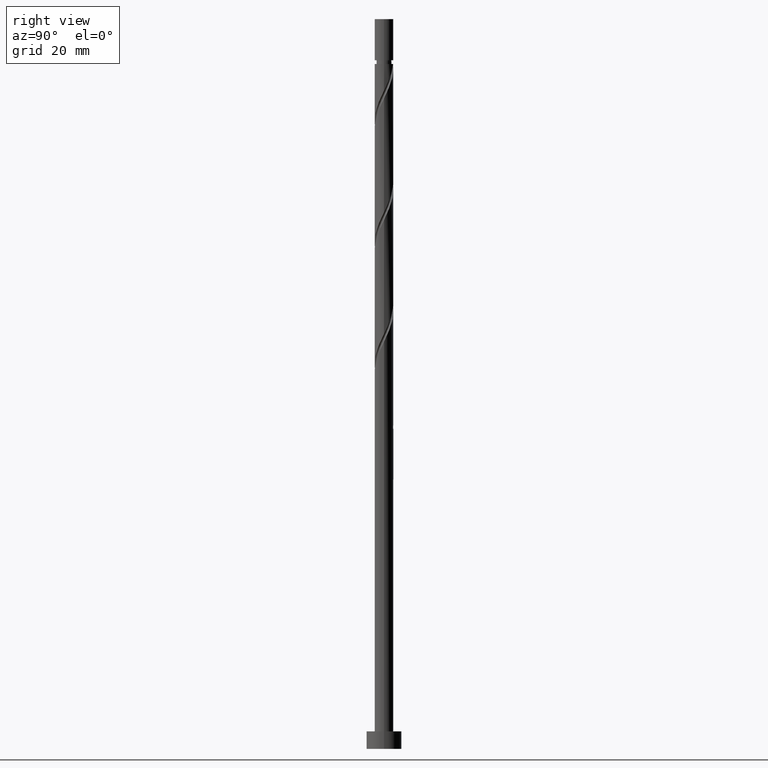
[diagram: clean part render]
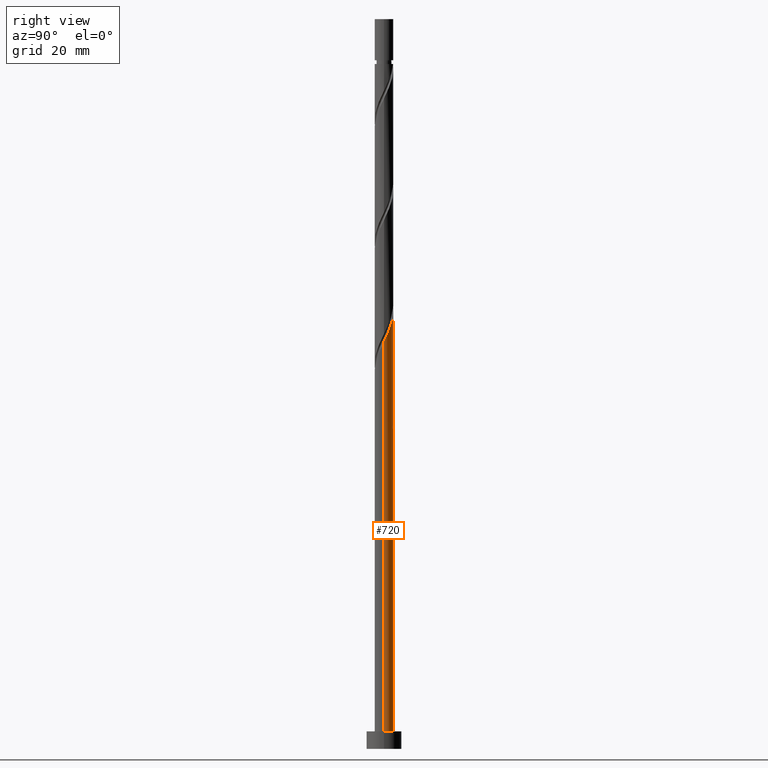
[diagram: same view with one face highlighted and labeled with its STEP entity id]
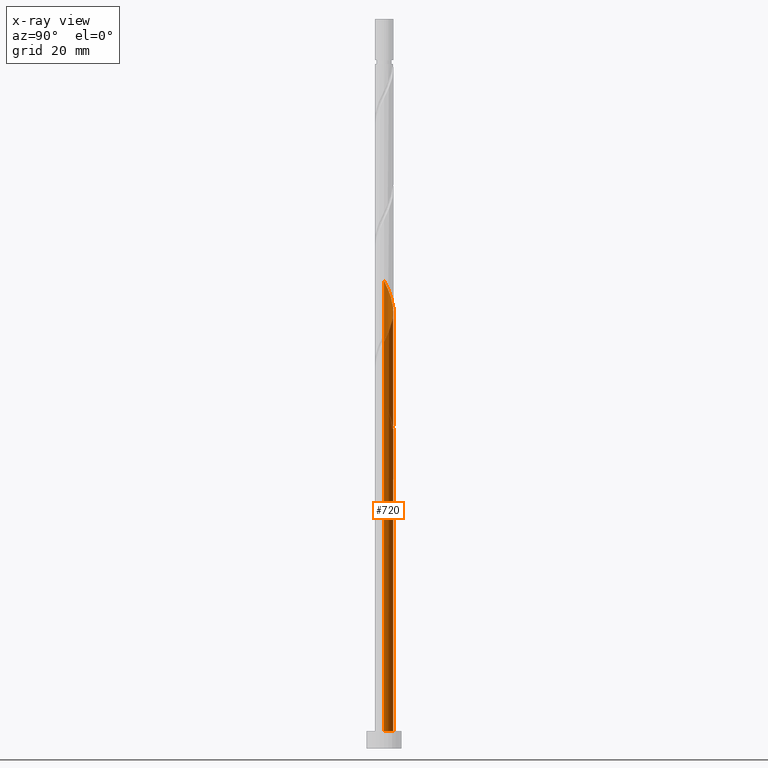
[diagram: x-ray of the same camera — body ghosted, the highlighted face saturated]
A machine part, right view. The second image highlights one B-rep face of the part: STEP entity #720.
The next image is the same camera in x-ray: the body ghosted, the highlighted face saturated — about 0% of this face is hidden behind the body in this view.
In plain terms, the highlighted cylindrical surface (edge-blend (fillet) strip) has radius 1.6 mm, axis along (-0, -0, -1).
Its self-contained STEP definition (entity closure, byte-faithful):
#3 = VERTEX_POINT ( 'NONE', #1516 ) ;
#34 = EDGE_CURVE ( 'NONE', #677, #938, #893, .T. ) ;
#38 = DIRECTION ( 'NONE',  ( -0.000000000000000000, -0.000000000000000000, -1.000000000000000000 ) ) ;
#57 = CARTESIAN_POINT ( 'NONE',  ( -1.455687108539137187, 0.6640595169357730310, 57.93328590375755738 ) ) ;
#74 = CARTESIAN_POINT ( 'NONE',  ( -1.007959654899766910, 1.268162666732014721, 77.20411923709089308 ) ) ;
#79 = VERTEX_POINT ( 'NONE', #153 ) ;
#81 = CARTESIAN_POINT ( 'NONE',  ( 1.600000000000002087, 1.641744754761022341E-15, 69.76848346228729270 ) ) ;
#89 = CARTESIAN_POINT ( 'NONE',  ( 0.1817260757584571729, 1.589646386272568934, 74.59995257042425010 ) ) ;
#91 = CARTESIAN_POINT ( 'NONE',  ( 0.000000000000000000, 0.000000000000000000, 3.000000000000000000 ) ) ;
#113 =( BOUNDED_CURVE ( )  B_SPLINE_CURVE ( 2, ( #289, #780, #1269, #167, #1141, #182, #57, #1515, #791, #662, #1028 ),
 .UNSPECIFIED., .F., .T. ) 
 B_SPLINE_CURVE_WITH_KNOTS ( ( 3, 2, 2, 2, 2, 3 ),
 ( 0.000000000000000000, 0.01249999999999995559, 0.02500000000000002220, 0.03749999999999997780, 0.05000000000000004441, 0.05453220231385498551 ),
 .UNSPECIFIED. ) 
 CURVE ( )  GEOMETRIC_REPRESENTATION_ITEM ( )  RATIONAL_B_SPLINE_CURVE ( ( 0.9090909090909201629, 0.8978984914501362269, 0.9090909090909201629, 0.8978984914501362269, 0.9090909090909201629, 0.8978984914501362269, 0.9090909090909201629, 0.8978984914501362269, 0.9090909090909201629, 0.9050328050005846947, 0.9039174447099425080 ) ) 
 REPRESENTATION_ITEM ( '' )  );
#123 = ORIENTED_EDGE ( 'NONE', *, *, #1422, .F. ) ;
#129 = CARTESIAN_POINT ( 'NONE',  ( -1.081390185820699124, 1.179235034253423464, 57.93328590375756448 ) ) ;
#153 = CARTESIAN_POINT ( 'NONE',  ( -0.3183959798741186620, 1.568000000000002281, 54.80828590375756448 ) ) ;
#162 = CARTESIAN_POINT ( 'NONE',  ( -1.568000000000000060, 0.3183959798741188285, 60.01661923709088597 ) ) ;
#167 = CARTESIAN_POINT ( 'NONE',  ( -1.007959654899766910, 1.268162666732014721, 56.37078590375755738 ) ) ;
#182 = CARTESIAN_POINT ( 'NONE',  ( -1.350510413607083127, 0.8946177049093868572, 57.41245257042422878 ) ) ;
#196 = EDGE_CURVE ( 'NONE', #938, #3, #1466, .T. ) ;
#207 = CARTESIAN_POINT ( 'NONE',  ( 1.081390185820700900, 1.179235034253424796, 72.51661923709087887 ) ) ;
#214 = CARTESIAN_POINT ( 'NONE',  ( 1.568000000000002281, 0.3183959798741187175, 70.43328590375756448 ) ) ;
#229 = CARTESIAN_POINT ( 'NONE',  ( -0.6640595169357719207, 1.455687108539135188, 56.89161923709089308 ) ) ;
#244 = CARTESIAN_POINT ( 'NONE',  ( 1.600000000000002087, 1.641744754761022341E-15, 69.76848346228729270 ) ) ;
#275 = EDGE_CURVE ( 'NONE', #1084, #330, #888, .T. ) ;
#289 = CARTESIAN_POINT ( 'NONE',  ( -0.3183959798741186620, 1.568000000000002281, 54.80828590375756448 ) ) ;
#305 = CARTESIAN_POINT ( 'NONE',  ( 1.600000000000000089, 1.959434878635764737E-16, 3.000000000000000000 ) ) ;
#306 = ORIENTED_EDGE ( 'NONE', *, *, #1047, .T. ) ;
#330 = VERTEX_POINT ( 'NONE', #1179 ) ;
#339 = CARTESIAN_POINT ( 'NONE',  ( -1.179235034253425241, 1.081390185820700678, 77.72495257042420747 ) ) ;
#351 = LINE ( 'NONE', #962, #360 ) ;
#360 = VECTOR ( 'NONE', #705, 1000.000000000000000 ) ;
#394 = DIRECTION ( 'NONE',  ( -4.814824860968087531E-30, -3.252606517456512671E-14, -1.000000000000000000 ) ) ;
#424 = AXIS2_PLACEMENT_3D ( 'NONE', #665, #394, #514 ) ;
#438 = CARTESIAN_POINT ( 'NONE',  ( -0.3183959798741186065, 1.568000000000002281, 75.64161923709089308 ) ) ;
#448 = DIRECTION ( 'NONE',  ( 0.000000000000000000, 0.000000000000000000, 1.000000000000000000 ) ) ;
#451 = EDGE_CURVE ( 'NONE', #79, #663, #113, .T. ) ;
#453 = CARTESIAN_POINT ( 'NONE',  ( -0.1817260757584562014, 1.589646386272566492, 55.84995257042422878 ) ) ;
#483 = DIRECTION ( 'NONE',  ( -0.000000000000000000, -0.000000000000000000, -1.000000000000000000 ) ) ;
#487 = CARTESIAN_POINT ( 'NONE',  ( 0.3183959798741191616, 1.568000000000000060, 54.80828590375756448 ) ) ;
#490 = DIRECTION ( 'NONE',  ( -0.000000000000000000, -0.000000000000000000, -1.000000000000000000 ) ) ;
#512 = CARTESIAN_POINT ( 'NONE',  ( -1.599999999999999201, 0.1608060504414752512, 60.34711710315331601 ) ) ;
#514 = DIRECTION ( 'NONE',  ( 0.000000000000000000, 1.000000000000000000, -3.035766082959412415E-14 ) ) ;
#549 = CARTESIAN_POINT ( 'NONE',  ( -1.599999999999999423, -2.196489557739646479E-15, 60.68142167856116487 ) ) ;
#554 = CARTESIAN_POINT ( 'NONE',  ( -1.350510413607083127, 0.8946177049093868572, 78.24578590375755027 ) ) ;
#563 = CARTESIAN_POINT ( 'NONE',  ( 0.8946177049093871902, 1.350510413607082683, 73.03745257042420747 ) ) ;
#569 = CARTESIAN_POINT ( 'NONE',  ( -0.7873512186013793546, 1.392866848829036108, 76.68328590375755027 ) ) ;
#601 = ORIENTED_EDGE ( 'NONE', *, *, #451, .F. ) ;
#603 = CARTESIAN_POINT ( 'NONE',  ( 0.000000000000000000, 0.000000000000000000, 125.0000000000000000 ) ) ;
#617 = AXIS2_PLACEMENT_3D ( 'NONE', #91, #448, #950 ) ;
#627 = EDGE_CURVE ( 'NONE', #677, #1153, #1524, .T. ) ;
#656 = VECTOR ( 'NONE', #483, 1000.000000000000000 ) ;
#662 = CARTESIAN_POINT ( 'NONE',  ( -1.600000000000001421, 0.09115797991429709646, 59.16230570641334907 ) ) ;
#663 = VERTEX_POINT ( 'NONE', #931 ) ;
#665 = CARTESIAN_POINT ( 'NONE',  ( 0.000000000000000000, 0.000000000000000000, 54.80828590375762133 ) ) ;
#666 = ORIENTED_EDGE ( 'NONE', *, *, #627, .F. ) ;
#677 = VERTEX_POINT ( 'NONE', #244 ) ;
#683 = CARTESIAN_POINT ( 'NONE',  ( 1.517571030926057496, 0.5667427823029920209, 70.95411923709089308 ) ) ;
#691 = CARTESIAN_POINT ( 'NONE',  ( -0.5667427823029921319, 1.517571030926057274, 76.16245257042417904 ) ) ;
#699 = CARTESIAN_POINT ( 'NONE',  ( 0.6640595169357734751, 1.455687108539137187, 73.55828590375756448 ) ) ;
#705 = DIRECTION ( 'NONE',  ( -0.000000000000000000, -0.000000000000000000, -1.000000000000000000 ) ) ;
#706 = CARTESIAN_POINT ( 'NONE',  ( -0.4335013289621583721, 1.560863803471189248, 56.37078590375756448 ) ) ;
#720 = ADVANCED_FACE ( 'NONE', ( #1444 ), #1452, .T. ) ;
#769 = EDGE_CURVE ( 'NONE', #1153, #1084, #1324, .T. ) ;
#780 = CARTESIAN_POINT ( 'NONE',  ( -0.5667427823029921319, 1.517571030926057274, 55.32911923709090729 ) ) ;
#791 = CARTESIAN_POINT ( 'NONE',  ( -1.589646386272568712, 0.1817260757584568676, 58.97495257042422878 ) ) ;
#852 = CARTESIAN_POINT ( 'NONE',  ( -1.600000000000000089, 0.000000000000000000, 125.0000000000000000 ) ) ;
#860 = DIRECTION ( 'NONE',  ( -1.000000000000000000, 0.000000000000000000, 0.000000000000000000 ) ) ;
#888 =( BOUNDED_CURVE ( )  B_SPLINE_CURVE ( 2, ( #1127, #512, #162, #1135, #1012, #1223, #129, #1313, #229, #706, #453, #1076, #487 ),
 .UNSPECIFIED., .F., .T. ) 
 B_SPLINE_CURVE_WITH_KNOTS ( ( 3, 2, 2, 2, 2, 2, 3 ),
 ( 0.9295322023138552492, 0.9375000000000000000, 0.9499999999999999556, 0.9625000000000000222, 0.9749999999999999778, 0.9875000000000000444, 1.000000000000000000 ),
 .UNSPECIFIED. ) 
 CURVE ( )  GEOMETRIC_REPRESENTATION_ITEM ( )  RATIONAL_B_SPLINE_CURVE ( ( 0.9039174447099364018, 0.9019565955404658109, 0.9090909090909141677, 0.8978984914501302317, 0.9090909090909141677, 0.8978984914501302317, 0.9090909090909141677, 0.8978984914501302317, 0.9090909090909141677, 0.8978984914501302317, 0.9090909090909141677, 0.8978984914501302317, 0.9090909090909141677 ) ) 
 REPRESENTATION_ITEM ( '' )  );
#893 = LINE ( 'NONE', #989, #1189 ) ;
#931 = CARTESIAN_POINT ( 'NONE',  ( -1.600000000000001865, 2.653779192627405425E-15, 59.35181679562062129 ) ) ;
#938 = VERTEX_POINT ( 'NONE', #305 ) ;
#940 = CARTESIAN_POINT ( 'NONE',  ( 0.4335013289621595378, 1.560863803471191247, 74.07911923709089308 ) ) ;
#950 = DIRECTION ( 'NONE',  ( 1.000000000000000000, 0.000000000000000000, 0.000000000000000000 ) ) ;
#962 = CARTESIAN_POINT ( 'NONE',  ( -1.600000000000000089, 0.000000000000000000, 125.0000000000000000 ) ) ;
#985 = EDGE_LOOP ( 'NONE', ( #666, #1314, #1394, #123, #601, #306, #1216, #1191 ) ) ;
#989 = CARTESIAN_POINT ( 'NONE',  ( 1.600000000000000089, 1.959434878635764737E-16, 125.0000000000000000 ) ) ;
#1012 = CARTESIAN_POINT ( 'NONE',  ( -1.392866848829034110, 0.7873512186013785774, 58.97495257042422878 ) ) ;
#1028 = CARTESIAN_POINT ( 'NONE',  ( -1.600000000000001865, 2.653779192627405425E-15, 59.35181679562062129 ) ) ;
#1047 = EDGE_CURVE ( 'NONE', #79, #330, #1526, .T. ) ;
#1053 = CARTESIAN_POINT ( 'NONE',  ( 1.392866848829036330, 0.7873512186013793546, 71.47495257042425010 ) ) ;
#1059 = CARTESIAN_POINT ( 'NONE',  ( -1.600000000000001421, 0.09115797991429287761, 79.99563903974667767 ) ) ;
#1076 = CARTESIAN_POINT ( 'NONE',  ( 0.07004917744524592760, 1.618428969073944623, 55.32911923709090729 ) ) ;
#1084 = VERTEX_POINT ( 'NONE', #549 ) ;
#1127 = CARTESIAN_POINT ( 'NONE',  ( -1.599999999999999423, -2.196489557739646479E-15, 60.68142167856116487 ) ) ;
#1135 = CARTESIAN_POINT ( 'NONE',  ( -1.517571030926055276, 0.5667427823029917988, 59.49578590375756448 ) ) ;
#1141 = CARTESIAN_POINT ( 'NONE',  ( -1.179235034253425241, 1.081390185820700678, 56.89161923709090019 ) ) ;
#1153 = VERTEX_POINT ( 'NONE', #1555 ) ;
#1179 = CARTESIAN_POINT ( 'NONE',  ( 0.3183959798741191616, 1.568000000000000060, 54.80828590375756448 ) ) ;
#1189 = VECTOR ( 'NONE', #38, 1000.000000000000000 ) ;
#1191 = ORIENTED_EDGE ( 'NONE', *, *, #769, .F. ) ;
#1216 = ORIENTED_EDGE ( 'NONE', *, *, #275, .F. ) ;
#1223 = CARTESIAN_POINT ( 'NONE',  ( -1.268162666732013166, 1.007959654899765578, 58.45411923709090019 ) ) ;
#1269 = CARTESIAN_POINT ( 'NONE',  ( -0.7873512186013793546, 1.392866848829036108, 55.84995257042422878 ) ) ;
#1283 = CARTESIAN_POINT ( 'NONE',  ( -1.455687108539137187, 0.6640595169357730310, 78.76661923709087887 ) ) ;
#1289 = CARTESIAN_POINT ( 'NONE',  ( 1.600000000000001421, 0.1608060504414771108, 70.10278803769513445 ) ) ;
#1313 = CARTESIAN_POINT ( 'NONE',  ( -0.8946177049093855249, 1.350510413607081350, 57.41245257042422878 ) ) ;
#1314 = ORIENTED_EDGE ( 'NONE', *, *, #34, .T. ) ;
#1323 = AXIS2_PLACEMENT_3D ( 'NONE', #603, #490, #860 ) ;
#1324 = LINE ( 'NONE', #852, #656 ) ;
#1394 = ORIENTED_EDGE ( 'NONE', *, *, #196, .T. ) ;
#1419 = CARTESIAN_POINT ( 'NONE',  ( -1.600000000000001865, -1.814165436767887467E-15, 80.18515012895396410 ) ) ;
#1422 = EDGE_CURVE ( 'NONE', #663, #3, #351, .T. ) ;
#1426 = CARTESIAN_POINT ( 'NONE',  ( 1.268162666732015387, 1.007959654899766688, 71.99578590375757869 ) ) ;
#1444 = FACE_OUTER_BOUND ( 'NONE', #985, .T. ) ;
#1452 = CYLINDRICAL_SURFACE ( 'NONE', #1323, 1.600000000000000089 ) ;
#1466 = CIRCLE ( 'NONE', #617, 1.600000000000000089 ) ;
#1515 = CARTESIAN_POINT ( 'NONE',  ( -1.560863803471191247, 0.4335013289621593713, 58.45411923709089308 ) ) ;
#1516 = CARTESIAN_POINT ( 'NONE',  ( -1.600000000000000089, 0.000000000000000000, 3.000000000000000000 ) ) ;
#1524 =( BOUNDED_CURVE ( )  B_SPLINE_CURVE ( 2, ( #81, #1289, #214, #683, #1053, #1426, #207, #563, #699, #940, #89, #1541, #438, #691, #569, #74, #339, #554, #1283, #1533, #1565, #1059, #1419 ),
 .UNSPECIFIED., .F., .T. ) 
 B_SPLINE_CURVE_WITH_KNOTS ( ( 3, 2, 2, 2, 2, 2, 2, 2, 2, 2, 2, 3 ),
 ( 0.1795322023138553602, 0.1875000000000000000, 0.1999999999999999556, 0.2125000000000000222, 0.2249999999999999778, 0.2375000000000000444, 0.2500000000000000000, 0.2624999999999999556, 0.2750000000000000222, 0.2874999999999999778, 0.3000000000000000444, 0.3045322023138551937 ),
 .UNSPECIFIED. ) 
 CURVE ( )  GEOMETRIC_REPRESENTATION_ITEM ( )  RATIONAL_B_SPLINE_CURVE ( ( 0.9039174447099422860, 0.9019565955404719171, 0.9090909090909201629, 0.8978984914501362269, 0.9090909090909201629, 0.8978984914501362269, 0.9090909090909201629, 0.8978984914501362269, 0.9090909090909201629, 0.8978984914501362269, 0.9090909090909201629, 0.8978984914501362269, 0.9090909090909201629, 0.8978984914501362269, 0.9090909090909201629, 0.8978984914501362269, 0.9090909090909201629, 0.8978984914501362269, 0.9090909090909201629, 0.8978984914501362269, 0.9090909090909201629, 0.9050328050005846947, 0.9039174447099423970 ) ) 
 REPRESENTATION_ITEM ( '' )  );
#1526 = CIRCLE ( 'NONE', #424, 1.600000000000000089 ) ;
#1533 = CARTESIAN_POINT ( 'NONE',  ( -1.560863803471191247, 0.4335013289621593713, 79.28745257042420747 ) ) ;
#1541 = CARTESIAN_POINT ( 'NONE',  ( -0.07004917744524535861, 1.618428969073946400, 75.12078590375755027 ) ) ;
#1555 = CARTESIAN_POINT ( 'NONE',  ( -1.600000000000002087, -1.814165436767887467E-15, 80.18515012895396410 ) ) ;
#1565 = CARTESIAN_POINT ( 'NONE',  ( -1.589646386272568712, 0.1817260757584568676, 79.80828590375755027 ) ) ;